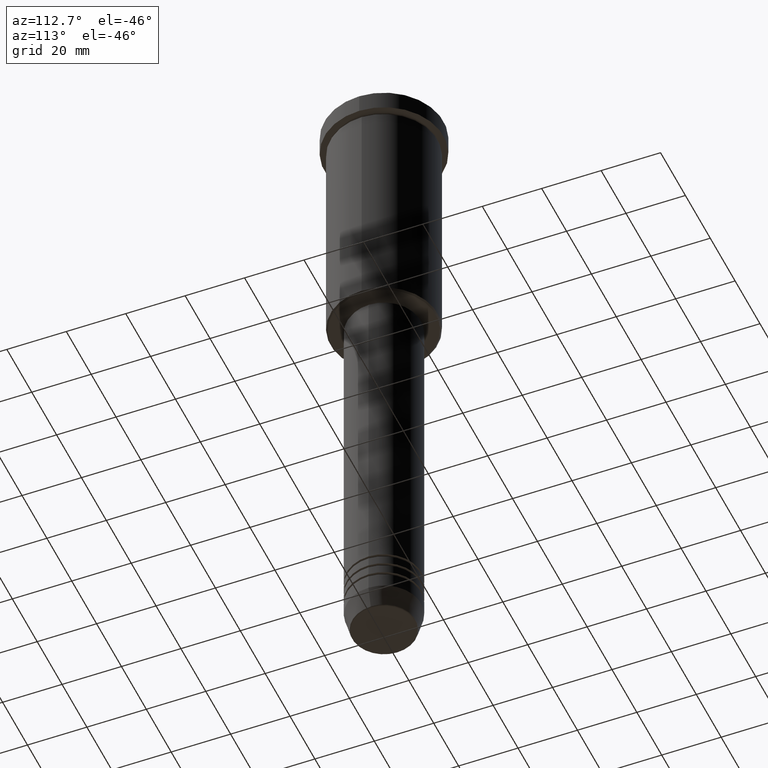
[diagram: clean part render]
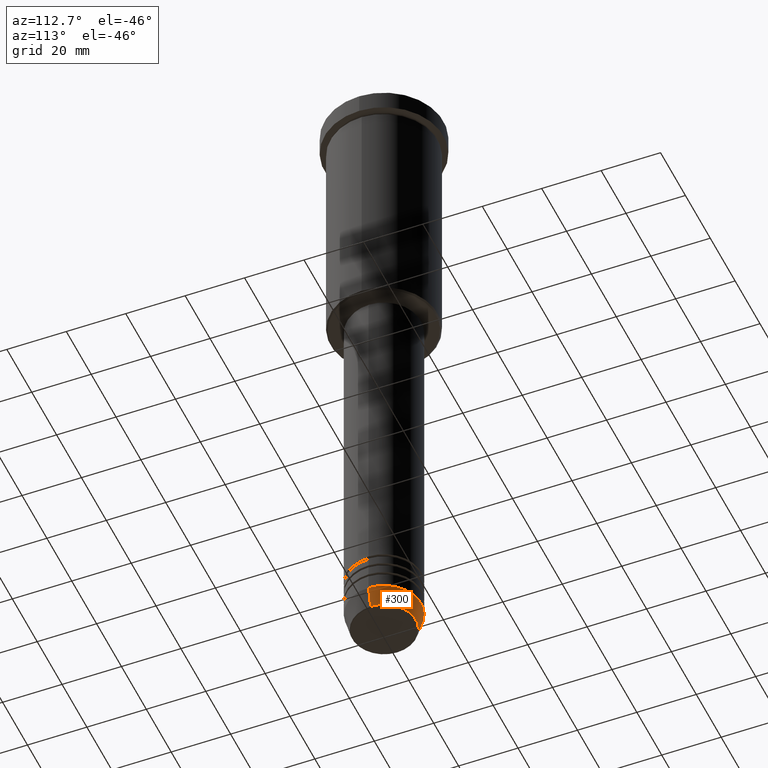
[diagram: same view with one face highlighted and labeled with its STEP entity id]
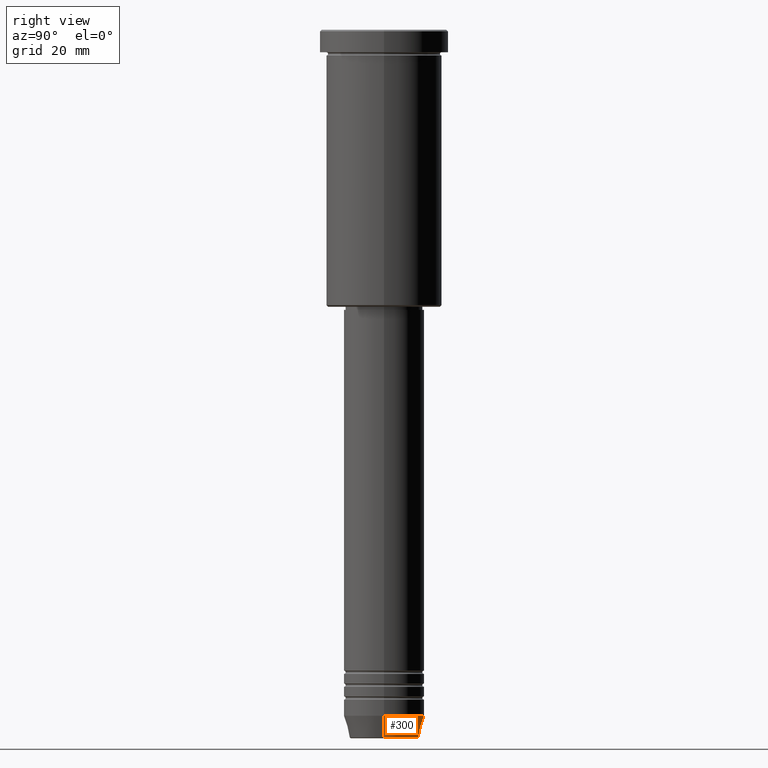
[diagram: same view with one face highlighted and labeled with its STEP entity id]
A machine part, auxiliary view. The second image highlights one B-rep face of the part: STEP entity #300.
A second angle (right view) of the same face is appended — the face is thin or edge-on in the first view.
In plain terms, the highlighted conical surface has half-angle 15 deg.
Its self-contained STEP definition (entity closure, byte-faithful):
#57 = ORIENTED_EDGE ( 'NONE', *, *, #828, .F. ) ;
#58 = CIRCLE ( 'NONE', #536, 12.50000000000000000 ) ;
#64 = EDGE_CURVE ( 'NONE', #604, #332, #1071, .T. ) ;
#102 = VERTEX_POINT ( 'NONE', #191 ) ;
#104 = CARTESIAN_POINT ( 'NONE',  ( 0.000000000000000000, 0.000000000000000000, -213.0000000000000000 ) ) ;
#189 = CARTESIAN_POINT ( 'NONE',  ( -10.72365507213719127, 1.422038742429750516E-15, -219.6294095225512422 ) ) ;
#191 = CARTESIAN_POINT ( 'NONE',  ( 12.50000000000000000, 0.000000000000000000, -213.0000000000000000 ) ) ;
#246 = DIRECTION ( 'NONE',  ( -0.2588190451025213501, 3.169619151431772337E-17, 0.9659258262890680902 ) ) ;
#282 = CARTESIAN_POINT ( 'NONE',  ( 10.72365507213719127, 0.000000000000000000, -219.6294095225512422 ) ) ;
#293 = ORIENTED_EDGE ( 'NONE', *, *, #64, .T. ) ;
#300 = ADVANCED_FACE ( 'NONE', ( #535 ), #1007, .T. ) ;
#321 = VECTOR ( 'NONE', #246, 1000.000000000000000 ) ;
#326 = ORIENTED_EDGE ( 'NONE', *, *, #1171, .T. ) ;
#332 = VERTEX_POINT ( 'NONE', #587 ) ;
#472 = CARTESIAN_POINT ( 'NONE',  ( 0.000000000000000000, 0.000000000000000000, -219.6294095225512422 ) ) ;
#478 = DIRECTION ( 'NONE',  ( 1.000000000000000000, 0.000000000000000000, 0.000000000000000000 ) ) ;
#502 = CARTESIAN_POINT ( 'NONE',  ( 12.50000000000000000, 0.000000000000000000, -213.0000000000000000 ) ) ;
#535 = FACE_OUTER_BOUND ( 'NONE', #762, .T. ) ;
#536 = AXIS2_PLACEMENT_3D ( 'NONE', #1041, #831, #848 ) ;
#557 = CIRCLE ( 'NONE', #734, 10.72365507213719127 ) ;
#587 = CARTESIAN_POINT ( 'NONE',  ( -12.50000000000000000, 1.530808498934191521E-15, -213.0000000000000000 ) ) ;
#604 = VERTEX_POINT ( 'NONE', #189 ) ;
#605 = VECTOR ( 'NONE', #993, 1000.000000000000000 ) ;
#618 = DIRECTION ( 'NONE',  ( 1.000000000000000000, 0.000000000000000000, 0.000000000000000000 ) ) ;
#630 = DIRECTION ( 'NONE',  ( -0.000000000000000000, -0.000000000000000000, 1.000000000000000000 ) ) ;
#734 = AXIS2_PLACEMENT_3D ( 'NONE', #472, #780, #478 ) ;
#762 = EDGE_LOOP ( 'NONE', ( #326, #293, #1094, #57 ) ) ;
#780 = DIRECTION ( 'NONE',  ( -0.000000000000000000, -0.000000000000000000, 1.000000000000000000 ) ) ;
#828 = EDGE_CURVE ( 'NONE', #1050, #102, #895, .T. ) ;
#831 = DIRECTION ( 'NONE',  ( -0.000000000000000000, -0.000000000000000000, 1.000000000000000000 ) ) ;
#848 = DIRECTION ( 'NONE',  ( 1.000000000000000000, 0.000000000000000000, 0.000000000000000000 ) ) ;
#895 = LINE ( 'NONE', #502, #605 ) ;
#993 = DIRECTION ( 'NONE',  ( 0.2588190451025213501, 0.000000000000000000, 0.9659258262890680902 ) ) ;
#997 = EDGE_CURVE ( 'NONE', #102, #332, #58, .T. ) ;
#1007 = CONICAL_SURFACE ( 'NONE', #1140, 12.50000000000000000, 0.2617993877991500740 ) ;
#1041 = CARTESIAN_POINT ( 'NONE',  ( 0.000000000000000000, 0.000000000000000000, -213.0000000000000000 ) ) ;
#1050 = VERTEX_POINT ( 'NONE', #282 ) ;
#1071 = LINE ( 'NONE', #1089, #321 ) ;
#1089 = CARTESIAN_POINT ( 'NONE',  ( -12.50000000000000000, 1.530808498934191521E-15, -213.0000000000000000 ) ) ;
#1094 = ORIENTED_EDGE ( 'NONE', *, *, #997, .F. ) ;
#1140 = AXIS2_PLACEMENT_3D ( 'NONE', #104, #630, #618 ) ;
#1171 = EDGE_CURVE ( 'NONE', #1050, #604, #557, .T. ) ;